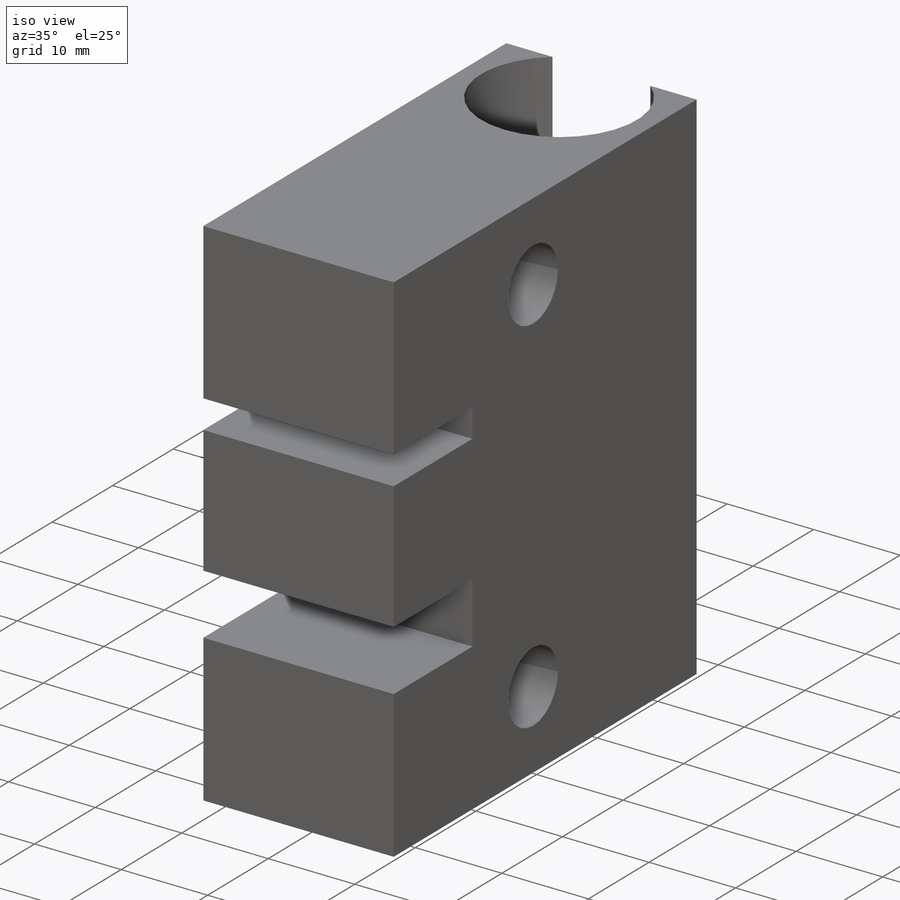
[diagram: iso view]
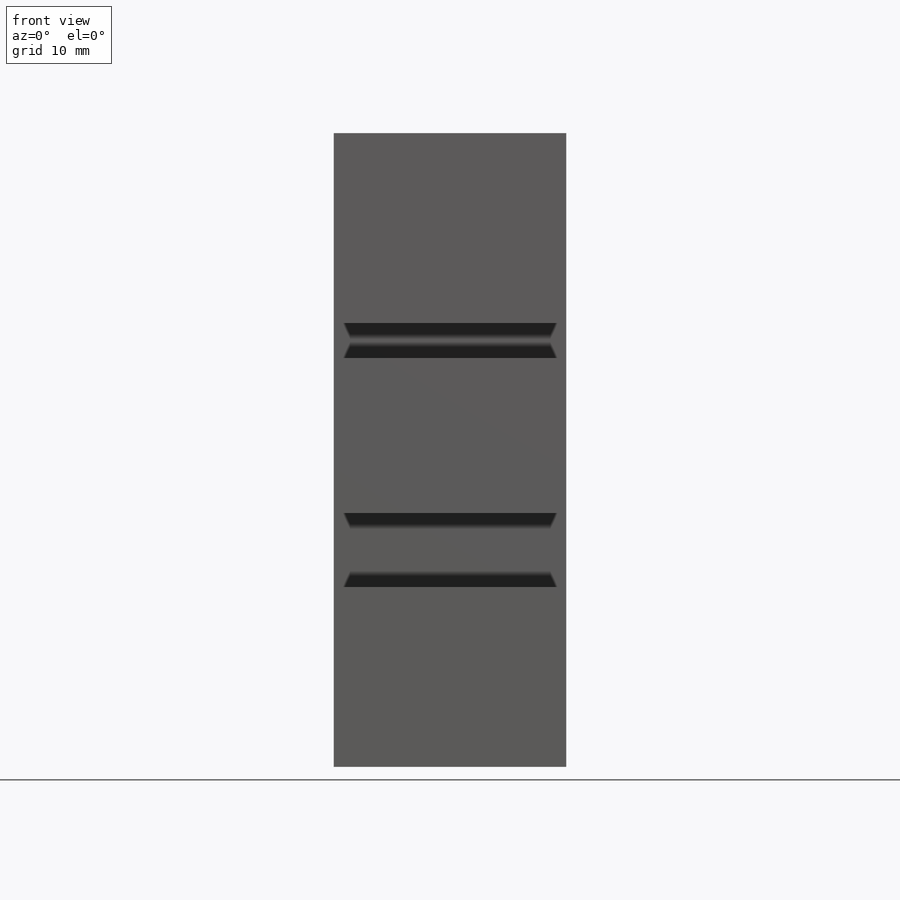
[diagram: front view]
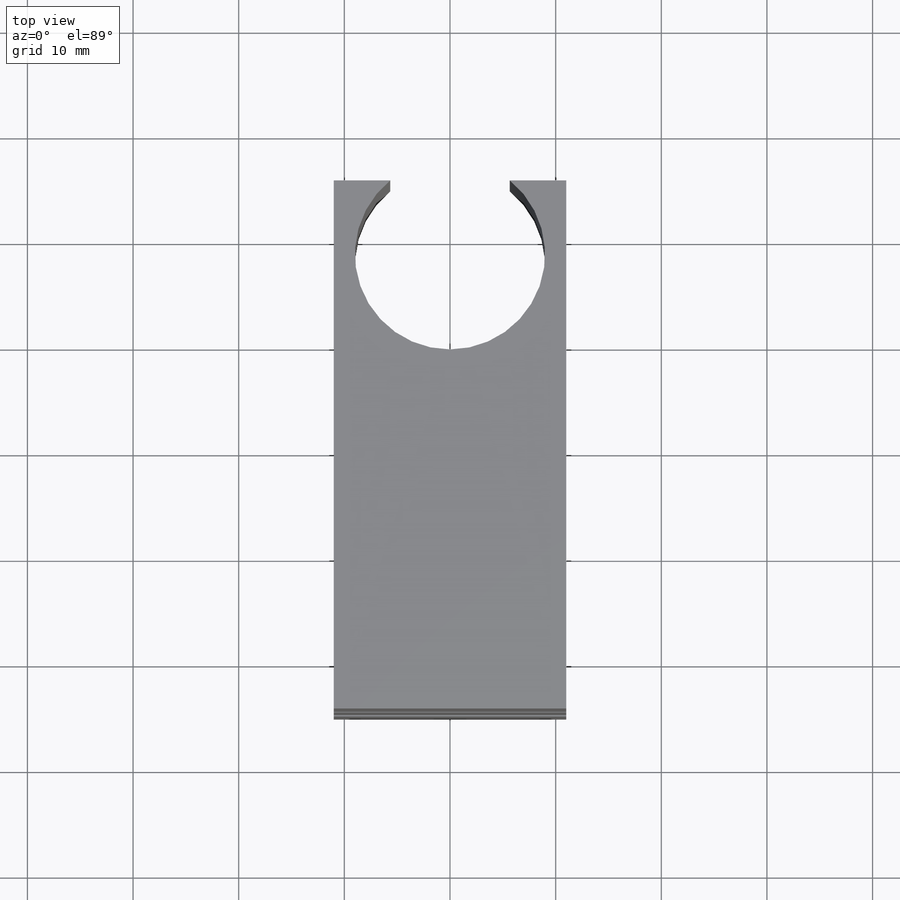
[diagram: top view]
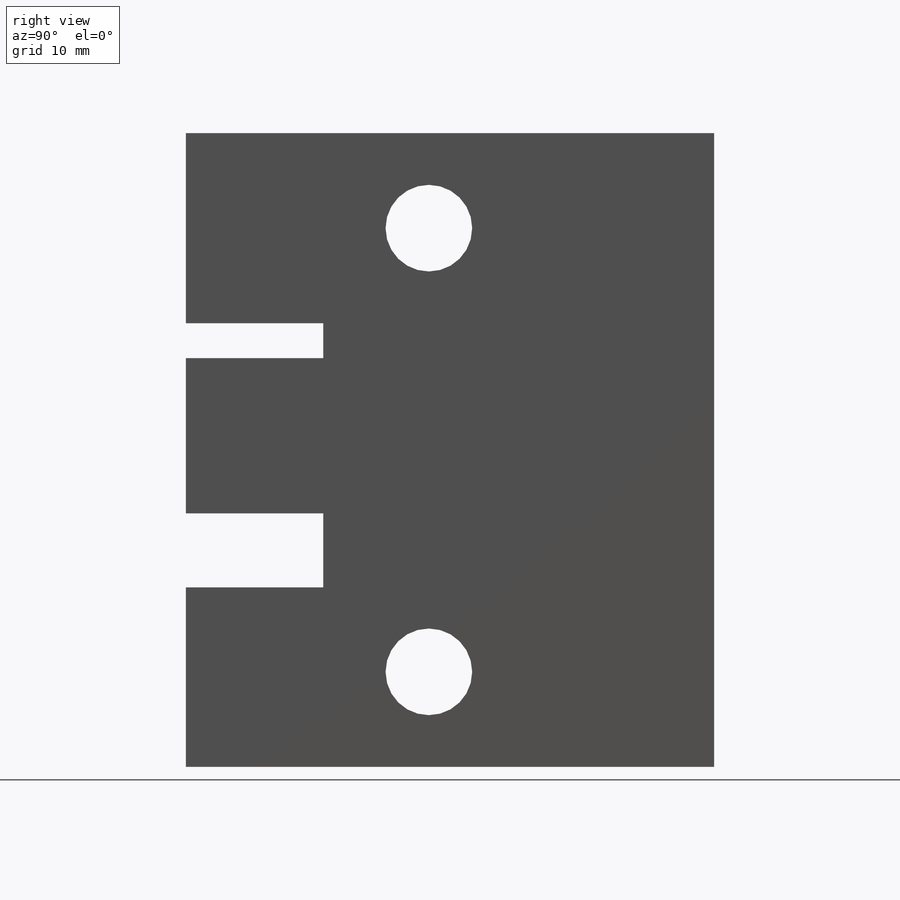
[diagram: right view]
SOLIDWORKS PART (.sldprt)
format: sldprt  version: not decoded by parser v0  size: 194,560 bytes
history: native  units: mm
features: sketch x4, cut_extrude x3, material x1, extrude x1 (+13 scaffold rows collapsed)
feature tree (22):
  scaffold x13  (default folders/planes/origin — collapsed)
  material  "Material <not specified>"
  sketch  "Sketch1"  dims[D1=50.0mm D2=22.0mm]
  extrude  "Boss-Extrude1"  Depth=60mm
  sketch  "Sketch2"  dims[c1.D1=5.0mm c1.D2=5.0mm c1.D3=8.0mm c1.D4=8.0mm c1.D5=8.0mm c2.D3=8.0mm c2.D4=8.0mm c2.D5=4.2mm c2.D1=9.0mm c2.D2=9.0mm c3.D3=9.0mm c3.D4=9.0mm c3.D5=42.0mm c4.D3=27.0mm c4.D4=27.0mm]
  cut_extrude  "Cut-Extrude1"  [1 undecoded]
  sketch  "Sketch4"  dims[D1=7.0mm]
  cut_extrude  "Cut-Extrude2"  [1 undecoded]
  sketch  "Sketch5"  dims[D1=7.0mm D2=3.3mm D3=18.0mm D4=17.0mm]
  cut_extrude  "Cut-Extrude3"  Depth=13mm
decode coverage: 6 of 8 modeling features carry decoded parameters
note: 2 parameter values undecoded
note: suppression state not decoded; provenance and decode notes live in map.json
